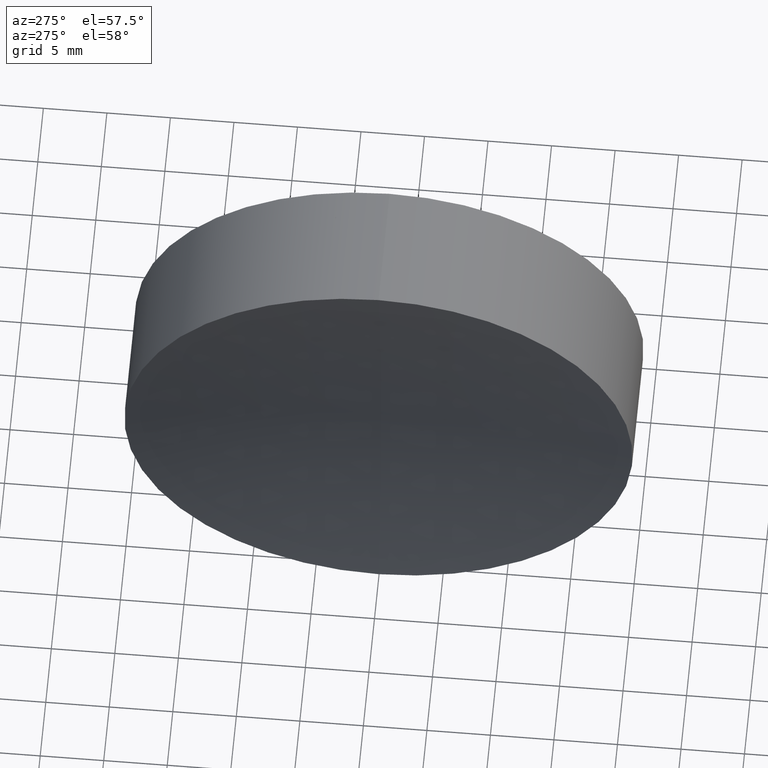
[diagram: clean part render]
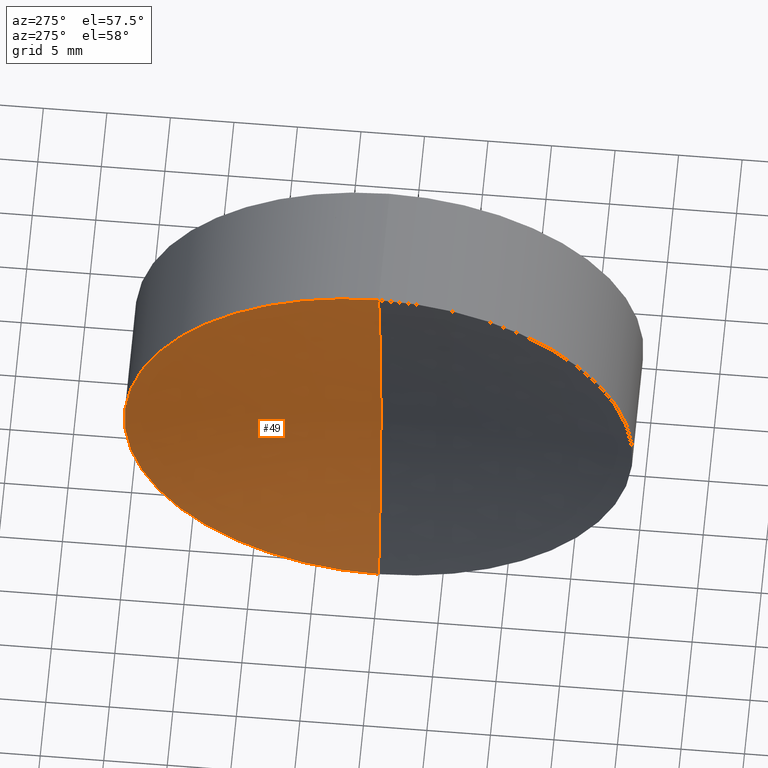
[diagram: same view with one face highlighted and labeled with its STEP entity id]
A machine part, auxiliary view. The second image highlights one B-rep face of the part: STEP entity #49.
In plain terms, the highlighted spherical surface has radius 91.62 mm.
Its self-contained STEP definition (entity closure, byte-faithful):
#3 = FACE_OUTER_BOUND ( 'NONE', #188, .T. ) ;
#20 = EDGE_CURVE ( 'NONE', #92, #157, #266, .T. ) ;
#27 = DIRECTION ( 'NONE',  ( -0.0000000000000000000, 1.000000000000000000, 0.0000000000000000000 ) ) ;
#30 = CARTESIAN_POINT ( 'NONE',  ( 243.5932381383219400, 0.0000000000000000000, 19.99999999999998200 ) ) ;
#33 = DIRECTION ( 'NONE',  ( -1.000000000000000000, -0.0000000000000000000, 1.836970198721029400E-016 ) ) ;
#46 = ORIENTED_EDGE ( 'NONE', *, *, #252, .T. ) ;
#49 = ADVANCED_FACE ( 'NONE', ( #3 ), #161, .F. ) ;
#63 = DIRECTION ( 'NONE',  ( 0.0000000000000000000, 0.0000000000000000000, -1.000000000000000000 ) ) ;
#80 = AXIS2_PLACEMENT_3D ( 'NONE', #173, #202, #203 ) ;
#88 = ORIENTED_EDGE ( 'NONE', *, *, #320, .F. ) ;
#92 = VERTEX_POINT ( 'NONE', #324 ) ;
#114 = VERTEX_POINT ( 'NONE', #268 ) ;
#144 = CARTESIAN_POINT ( 'NONE',  ( 154.1828114532870300, 0.0000000000000000000, 4.969511586685588200E-023 ) ) ;
#146 = DIRECTION ( 'NONE',  ( 3.029423228075628900E-016, 0.0000000000000000000, 1.000000000000000000 ) ) ;
#157 = VERTEX_POINT ( 'NONE', #30 ) ;
#161 = SPHERICAL_SURFACE ( 'NONE', #178, 91.62000000000000500 ) ;
#166 = CIRCLE ( 'NONE', #269, 20.00000000000004600 ) ;
#173 = CARTESIAN_POINT ( 'NONE',  ( 154.1828114532870300, 0.0000000000000000000, 4.969511586685588200E-023 ) ) ;
#178 = AXIS2_PLACEMENT_3D ( 'NONE', #144, #27, #146 ) ;
#185 = CARTESIAN_POINT ( 'NONE',  ( 243.5932381383219400, 0.0000000000000000000, -4.489726009679723200E-014 ) ) ;
#188 = EDGE_LOOP ( 'NONE', ( #88, #200, #46 ) ) ;
#194 = CARTESIAN_POINT ( 'NONE',  ( 154.1828114532870300, 0.0000000000000000000, 4.969511586685588200E-023 ) ) ;
#200 = ORIENTED_EDGE ( 'NONE', *, *, #20, .T. ) ;
#202 = DIRECTION ( 'NONE',  ( 2.249639673992786100E-032, 1.000000000000000000, 1.224646799147353200E-016 ) ) ;
#203 = DIRECTION ( 'NONE',  ( 0.0000000000000000000, -1.224646799147353200E-016, 1.000000000000000000 ) ) ;
#225 = CIRCLE ( 'NONE', #80, 91.62000000000000500 ) ;
#233 = DIRECTION ( 'NONE',  ( 0.0000000000000000000, 0.0000000000000000000, 1.000000000000000000 ) ) ;
#245 = DIRECTION ( 'NONE',  ( 0.0000000000000000000, -1.000000000000000000, 0.0000000000000000000 ) ) ;
#251 = AXIS2_PLACEMENT_3D ( 'NONE', #194, #245, #63 ) ;
#252 = EDGE_CURVE ( 'NONE', #157, #114, #166, .T. ) ;
#266 = CIRCLE ( 'NONE', #251, 91.62000000000000500 ) ;
#268 = CARTESIAN_POINT ( 'NONE',  ( 243.5932381383219400, 2.449293598294710100E-015, -20.00000000000004600 ) ) ;
#269 = AXIS2_PLACEMENT_3D ( 'NONE', #185, #33, #233 ) ;
#320 = EDGE_CURVE ( 'NONE', #92, #114, #225, .T. ) ;
#324 = CARTESIAN_POINT ( 'NONE',  ( 245.8028114532870300, 0.0000000000000000000, -1.122021392409293200E-014 ) ) ;